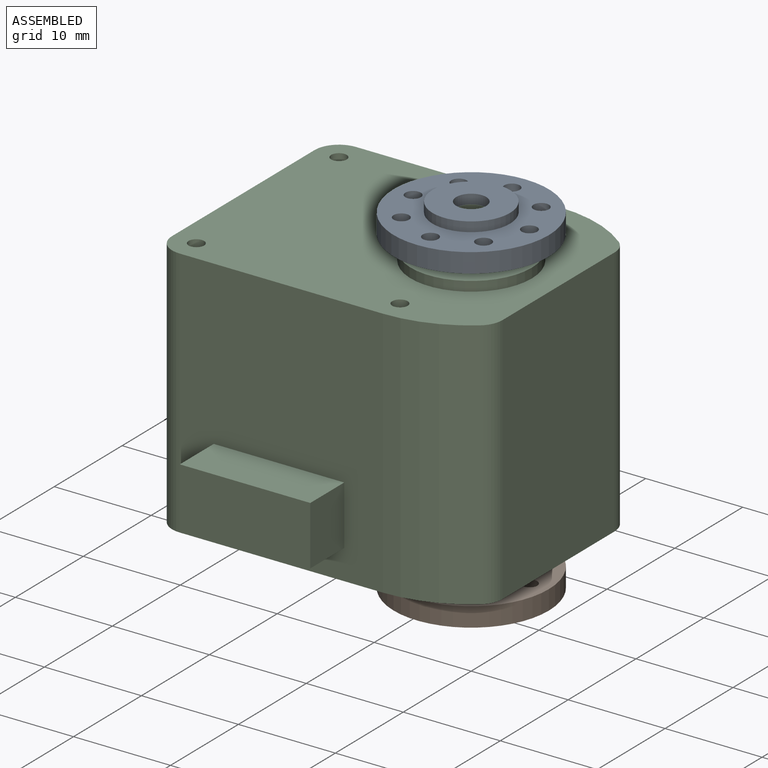
[diagram: assembled view]
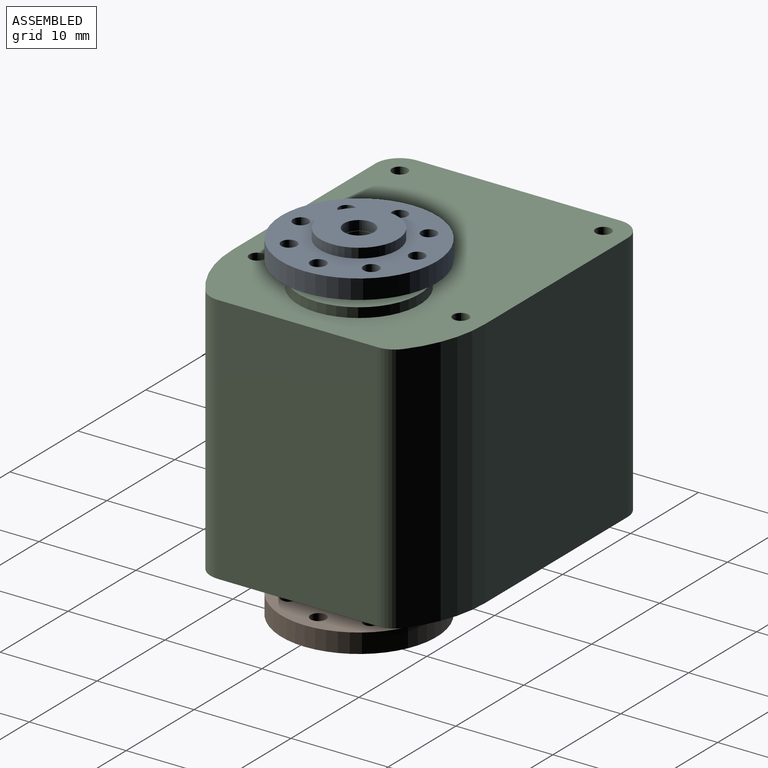
[diagram: assembled view, second angle]
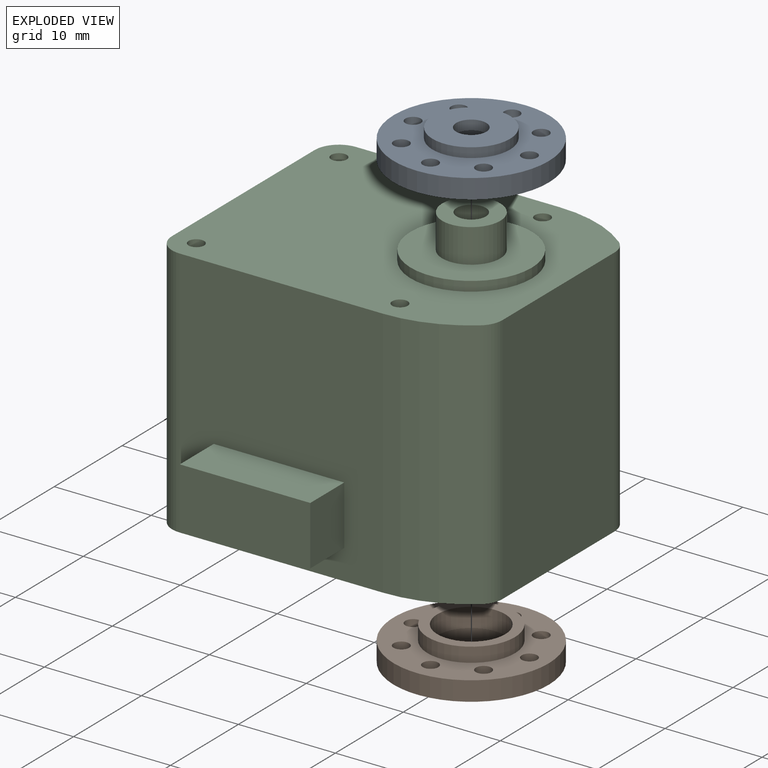
[diagram: exploded view]
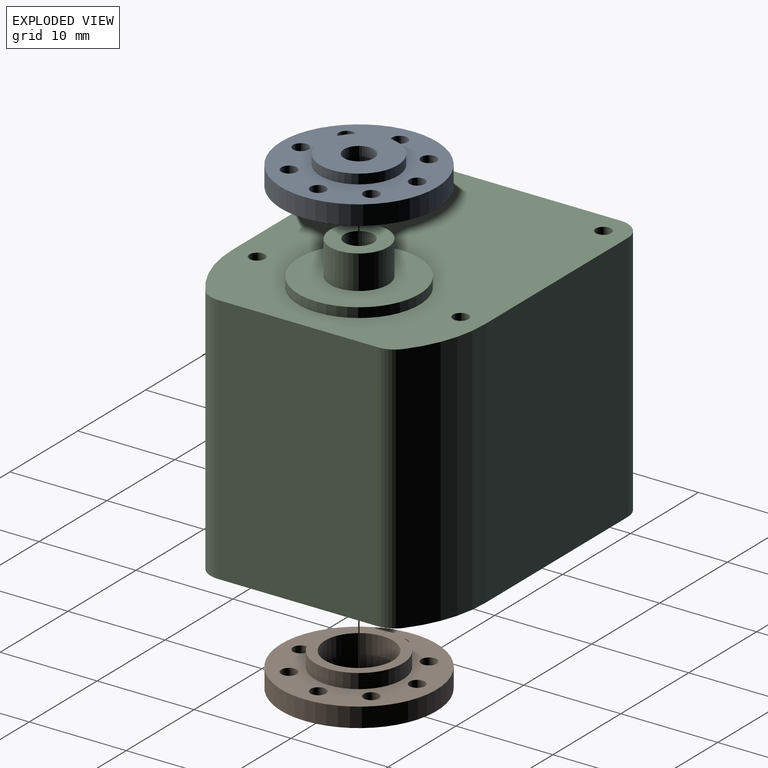
[diagram: exploded view, second angle]
ASSEMBLY  parts=3 mates=2
PART A: 18 faces, bbox 16x16x4.2 mm
  f0: cylinder r=3mm len=6mm, axis (0,0,-1), area 60.3mm2, adj f2,f17
  f1: cylinder r=4.5mm len=9mm, axis (0,0,-1), area 33.9mm2, adj f2,f13
  f2: plane 9x9mm, normal (0,0,-1), area 35.3mm2, adj f0,f1
  f3: cylinder r=0.8mm len=2mm, axis (0,0,-1), area 10.1mm2, adj f12,f13
  f4: cylinder r=0.8mm len=2mm, axis (0,0,-1), area 10.1mm2, adj f12,f13
  f5: cylinder r=0.8mm len=2mm, axis (0,0,-1), area 10.1mm2, adj f12,f13
  f6: cylinder r=0.8mm len=2mm, axis (0,0,-1), area 10.1mm2, adj f12,f13
  f7: cylinder r=0.8mm len=2mm, axis (0,0,-1), area 10.1mm2, adj f12,f13
  f8: cylinder r=0.8mm len=2mm, axis (0,0,-1), area 10.1mm2, adj f12,f13
  f9: cylinder r=0.8mm len=2mm, axis (0,0,-1), area 10.1mm2, adj f12,f13
  f10: cylinder r=0.8mm len=2mm, axis (0,0,-1), area 10.1mm2, adj f12,f13
  f11: cylinder r=8mm len=16mm, axis (0,0,-1), area 100.5mm2, adj f12,f13
  f12: plane 16x16mm, normal (0,0,1), area 134.7mm2, adj f3,f4,f5,f6,f7,f8,f9,f10
  f13: plane 16x16mm, normal (0,0,-1), area 121.4mm2, adj f1,f3,f4,f5,f6,f7,f8,f9
  f14: cylinder r=1.55mm len=3.1mm, axis (0,0,-1), area 9.7mm2, adj f16,f17
  f15: cylinder r=4mm len=8mm, axis (0,0,-1), area 25.1mm2, adj f12,f16
  f16: plane 8x8mm, normal (0,0,1), area 42.7mm2, adj f14,f15
  f17: plane 6x6mm, normal (0,0,-1), area 20.7mm2, adj f0,f14
PART B: 16 faces, bbox 16x16x3.5 mm
  f0: cylinder r=3.5mm len=7mm, axis (0,0,-1), area 44mm2, adj f2,f15
  f1: cylinder r=4.5mm len=9mm, axis (0,0,-1), area 42.4mm2, adj f2,f13
  f2: plane 9x9mm, normal (0,0,-1), area 25.1mm2, adj f0,f1
  f3: cylinder r=0.8mm len=2mm, axis (0,0,-1), area 10.1mm2, adj f12,f13
  f4: cylinder r=0.8mm len=2mm, axis (0,0,-1), area 10.1mm2, adj f12,f13
  f5: cylinder r=0.8mm len=2mm, axis (0,0,-1), area 10.1mm2, adj f12,f13
  f6: cylinder r=0.8mm len=2mm, axis (0,0,-1), area 10.1mm2, adj f12,f13
  f7: cylinder r=0.8mm len=2mm, axis (0,0,-1), area 10.1mm2, adj f12,f13
  f8: cylinder r=0.8mm len=2mm, axis (0,0,-1), area 10.1mm2, adj f12,f13
  f9: cylinder r=0.8mm len=2mm, axis (0,0,-1), area 10.1mm2, adj f12,f13
  f10: cylinder r=0.8mm len=2mm, axis (0,0,-1), area 10.1mm2, adj f12,f13
  f11: cylinder r=8mm len=16mm, axis (0,0,-1), area 100.5mm2, adj f12,f13
  f12: plane 16x16mm, normal (0,0,1), area 134.7mm2, adj f3,f4,f5,f6,f7,f8,f9,f10
  f13: plane 16x16mm, normal (0,0,-1), area 121.4mm2, adj f1,f3,f4,f5,f6,f7,f8,f9
  f14: cylinder r=4mm len=8mm, axis (0,0,1), area 37.7mm2, adj f12,f15
  f15: plane 8x8mm, normal (0,0,1), area 11.8mm2, adj f0,f14
PART C: 33 faces, bbox 32.5x31x33.5 mm
  f0: plane 26x16.49mm, normal (1,0,0), area 428.8mm2, adj f1,f9,f14,f15
  f1: cylinder r=2.5mm len=26mm, axis (0,0,-1), area 58.7mm2, adj f0,f2,f14,f15
  f2: cylinder r=13mm len=26mm, axis (0,0,-1), area 225.6mm2, adj f1,f3,f14,f15
  f3: plane 26x21mm, normal (0,1,0), area 546mm2, adj f2,f4,f14,f15
  f4: cylinder r=2.5mm len=26mm, axis (0,0,-1), area 102.1mm2, adj f3,f5,f14,f15
  f5: plane 26x21mm, normal (-1,0,0), area 546mm2, adj f4,f6,f14,f15
  f6: cylinder r=2.5mm len=26mm, axis (0,0,-1), area 102.1mm2, adj f5,f7,f14,f15
  f7: plane 26x21mm, normal (0,-1,0), area 464mm2, adj f6,f8,f14,f15,f28,f29,f30,f31
  f8: cylinder r=13mm len=26mm, axis (0,0,-1), area 225.6mm2, adj f7,f9,f14,f15
  f9: cylinder r=2.5mm len=26mm, axis (0,0,-1), area 58.7mm2, adj f0,f8,f14,f15
  f10: cylinder r=0.8mm len=26mm, axis (0,0,-1), area 130.7mm2, adj f14,f15
  f11: cylinder r=0.8mm len=26mm, axis (0,0,-1), area 130.7mm2, adj f14,f15
  f12: cylinder r=0.8mm len=26mm, axis (0,0,-1), area 130.7mm2, adj f14,f15
  f13: cylinder r=0.8mm len=26mm, axis (0,0,-1), area 130.7mm2, adj f14,f15
  f14: plane 32.5x26mm, normal (0,0,1), area 690.8mm2, adj f0,f1,f2,f3,f4,f5,f6,f7
  f15: plane 32.5x26mm, normal (0,0,-1), area 690.8mm2, adj f0,f1,f2,f3,f4,f5,f6,f7
  f16: plane 12.5x12.5mm, normal (0,0,-1), area 84.2mm2, adj f17,f25
  f17: cylinder r=6.25mm len=12.5mm, axis (0,0,-1), area 39.3mm2, adj f15,f16
  f18: cylinder r=6.25mm len=12.5mm, axis (0,0,-1), area 39.3mm2, adj f14,f19
  f19: plane 12.5x12.5mm, normal (0,0,1), area 94.4mm2, adj f18,f21
  f20: cylinder r=1.5mm len=3.5mm, axis (0,0,-1), area 33mm2, adj f22,f23
  f21: cylinder r=3mm len=6mm, axis (0,0,-1), area 66mm2, adj f19,f22
  f22: plane 6x6mm, normal (0,0,1), area 21.2mm2, adj f20,f21
  f23: plane 3x3mm, normal (0,0,1), area 7.1mm2, adj f20
  f24: cylinder r=1.1mm len=2.2mm, axis (0,0,1), area 13.8mm2, adj f26,f27
  f25: cylinder r=3.5mm len=7mm, axis (0,0,1), area 44mm2, adj f16,f26
  f26: plane 7x7mm, normal (0,0,-1), area 34.7mm2, adj f24,f25
  f27: plane 2.2x2.2mm, normal (0,0,-1), area 3.8mm2, adj f24
  f28: plane 13.45x5mm, normal (0,0,-1), area 67.2mm2, adj f7,f29,f31,f32
  f29: plane 6.1x5mm, normal (1,0,0), area 30.5mm2, adj f7,f28,f30,f32
  f30: plane 13.45x5mm, normal (0,0,1), area 67.2mm2, adj f7,f29,f31,f32
  f31: plane 6.1x5mm, normal (-1,0,0), area 30.5mm2, adj f7,f28,f30,f32
  f32: plane 13.45x6.1mm, normal (0,-1,0), area 82mm2, adj f28,f29,f30,f31
PLACE A t=(0,0.01,14.09)mm
PLACE B rot(axis=(1,0,0),180deg) t=(0,0.01,-14.21)mm
PLACE C t=(0,0.01,-0.21)mm fixed
MATE revolute C.f2 <-> A.f0  axis (0,0,1) through (0,0.01,17.29)mm
MATE revolute B.f0 <-> C.f2  axis (0,0,-1) through (0,0.01,-16.21)mm
